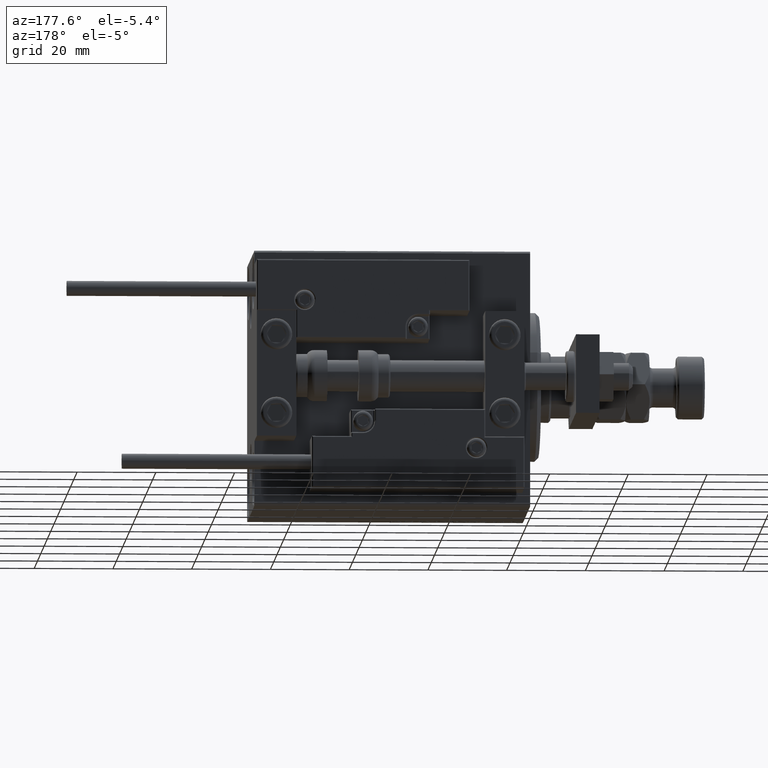
[diagram: clean part render]
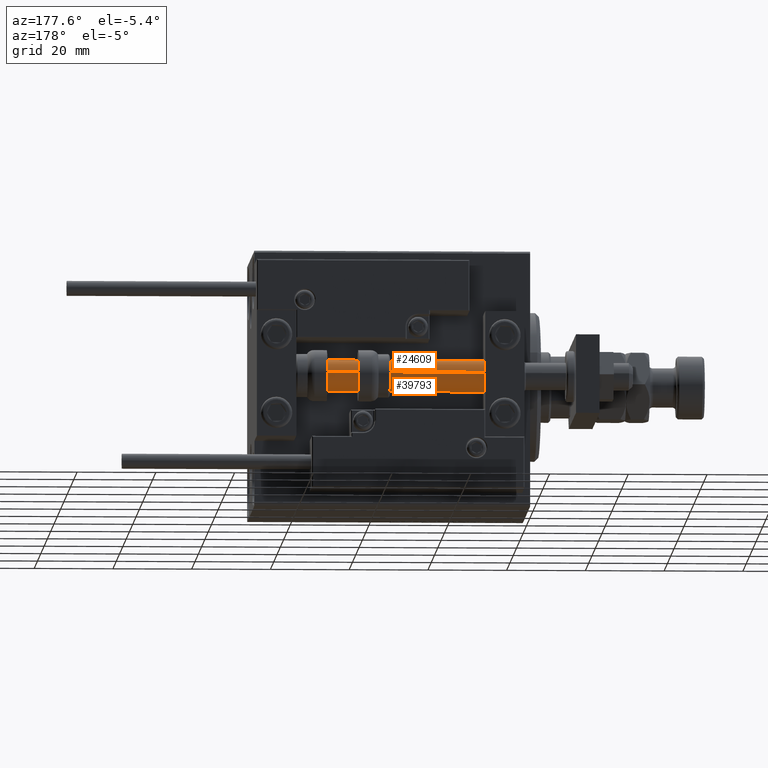
[diagram: same view with one multi-face feature highlighted, each face labeled with its STEP entity id]
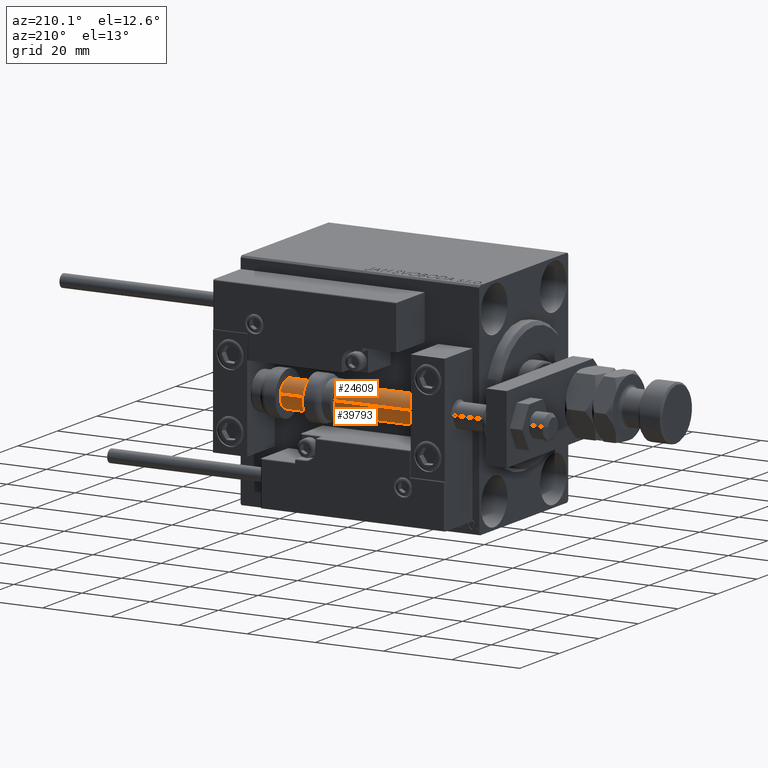
[diagram: same view with one multi-face feature highlighted, each face labeled with its STEP entity id]
A machine part, auxiliary view. The highlighted faces form ONE feature: a constant-radius fillet chain: 2 tangent blend faces with common blend radius 4 mm. The faces share edges in the B-rep.
A second angle (auxiliary view) of the same feature is appended — it is thin or edge-on in the first view.
Their STEP definitions:
[1] entity #24609 (Cylinder):
#105 = CARTESIAN_POINT ( 'NONE',  ( 4.000000000000000000, 4.898587196589412829E-16, 70.00000000000000000 ) ) ;
#454 = DIRECTION ( 'NONE',  ( 1.000000000000000000, 0.000000000000000000, 0.000000000000000000 ) ) ;
#795 = DIRECTION ( 'NONE',  ( -0.000000000000000000, -0.000000000000000000, -1.000000000000000000 ) ) ;
#4384 = DIRECTION ( 'NONE',  ( 0.000000000000000000, 0.000000000000000000, 1.000000000000000000 ) ) ;
#4900 = CARTESIAN_POINT ( 'NONE',  ( 0.000000000000000000, 0.000000000000000000, 70.00000000000000000 ) ) ;
#5377 = AXIS2_PLACEMENT_3D ( 'NONE', #14203, #10264, #41461 ) ;
#5674 = CARTESIAN_POINT ( 'NONE',  ( 0.000000000000000000, 0.000000000000000000, 70.00000000000000000 ) ) ;
#6203 = VECTOR ( 'NONE', #795, 1000.000000000000000 ) ;
#7193 = DIRECTION ( 'NONE',  ( -0.000000000000000000, -0.000000000000000000, -1.000000000000000000 ) ) ;
#9125 = AXIS2_PLACEMENT_3D ( 'NONE', #4900, #4384, #454 ) ;
#10264 = DIRECTION ( 'NONE',  ( -0.000000000000000000, -0.000000000000000000, 1.000000000000000000 ) ) ;
#11595 = EDGE_CURVE ( 'NONE', #33531, #50316, #47188, .T. ) ;
#11849 = EDGE_CURVE ( 'NONE', #33283, #33531, #17029, .T. ) ;
#13177 = CARTESIAN_POINT ( 'NONE',  ( -4.000000000000000000, 0.000000000000000000, 2.000000000000029310 ) ) ;
#14203 = CARTESIAN_POINT ( 'NONE',  ( 0.000000000000000000, 0.000000000000000000, 2.000000000000029310 ) ) ;
#14392 = VERTEX_POINT ( 'NONE', #20632 ) ;
#16669 = ORIENTED_EDGE ( 'NONE', *, *, #42827, .F. ) ;
#17029 = LINE ( 'NONE', #24113, #6203 ) ;
#17446 = AXIS2_PLACEMENT_3D ( 'NONE', #5674, #17719, #21649 ) ;
#17719 = DIRECTION ( 'NONE',  ( -0.000000000000000000, -0.000000000000000000, -1.000000000000000000 ) ) ;
#20632 = CARTESIAN_POINT ( 'NONE',  ( -4.000000000000000000, 0.000000000000000000, 70.00000000000000000 ) ) ;
#20980 = CARTESIAN_POINT ( 'NONE',  ( 4.000000000000000000, 4.898587196589412829E-16, 2.000000000000029310 ) ) ;
#21649 = DIRECTION ( 'NONE',  ( -1.000000000000000000, 0.000000000000000000, 0.000000000000000000 ) ) ;
#24113 = CARTESIAN_POINT ( 'NONE',  ( 4.000000000000000000, 4.898587196589412829E-16, 70.00000000000000000 ) ) ;
#24609 = ADVANCED_FACE ( 'NONE', ( #25590 ), #41571, .T. ) ;
#25590 = FACE_OUTER_BOUND ( 'NONE', #33533, .T. ) ;
#28949 = ORIENTED_EDGE ( 'NONE', *, *, #11849, .T. ) ;
#33283 = VERTEX_POINT ( 'NONE', #105 ) ;
#33531 = VERTEX_POINT ( 'NONE', #20980 ) ;
#33533 = EDGE_LOOP ( 'NONE', ( #50112, #28949, #43942, #16669 ) ) ;
#36645 = VECTOR ( 'NONE', #7193, 1000.000000000000000 ) ;
#41461 = DIRECTION ( 'NONE',  ( 1.000000000000000000, 0.000000000000000000, 0.000000000000000000 ) ) ;
#41571 = CYLINDRICAL_SURFACE ( 'NONE', #17446, 4.000000000000000000 ) ;
#42827 = EDGE_CURVE ( 'NONE', #14392, #50316, #47285, .T. ) ;
#43942 = ORIENTED_EDGE ( 'NONE', *, *, #11595, .T. ) ;
#45954 = EDGE_CURVE ( 'NONE', #33283, #14392, #47611, .T. ) ;
#47188 = CIRCLE ( 'NONE', #5377, 4.000000000000000000 ) ;
#47285 = LINE ( 'NONE', #48052, #36645 ) ;
#47611 = CIRCLE ( 'NONE', #9125, 4.000000000000000000 ) ;
#48052 = CARTESIAN_POINT ( 'NONE',  ( -4.000000000000000000, 0.000000000000000000, 70.00000000000000000 ) ) ;
#50112 = ORIENTED_EDGE ( 'NONE', *, *, #45954, .F. ) ;
#50316 = VERTEX_POINT ( 'NONE', #13177 ) ;
[2] entity #39793 (Cylinder):
#105 = CARTESIAN_POINT ( 'NONE',  ( 4.000000000000000000, 4.898587196589412829E-16, 70.00000000000000000 ) ) ;
#795 = DIRECTION ( 'NONE',  ( -0.000000000000000000, -0.000000000000000000, -1.000000000000000000 ) ) ;
#923 = FACE_OUTER_BOUND ( 'NONE', #17223, .T. ) ;
#1193 = CIRCLE ( 'NONE', #44688, 4.000000000000000000 ) ;
#6203 = VECTOR ( 'NONE', #795, 1000.000000000000000 ) ;
#7193 = DIRECTION ( 'NONE',  ( -0.000000000000000000, -0.000000000000000000, -1.000000000000000000 ) ) ;
#9606 = DIRECTION ( 'NONE',  ( 1.000000000000000000, 0.000000000000000000, 0.000000000000000000 ) ) ;
#11849 = EDGE_CURVE ( 'NONE', #33283, #33531, #17029, .T. ) ;
#13177 = CARTESIAN_POINT ( 'NONE',  ( -4.000000000000000000, 0.000000000000000000, 2.000000000000029310 ) ) ;
#14392 = VERTEX_POINT ( 'NONE', #20632 ) ;
#17029 = LINE ( 'NONE', #24113, #6203 ) ;
#17223 = EDGE_LOOP ( 'NONE', ( #31164, #18217, #35271, #22155 ) ) ;
#18217 = ORIENTED_EDGE ( 'NONE', *, *, #22273, .F. ) ;
#19619 = DIRECTION ( 'NONE',  ( 0.000000000000000000, 0.000000000000000000, 1.000000000000000000 ) ) ;
#19782 = DIRECTION ( 'NONE',  ( -1.000000000000000000, 0.000000000000000000, 0.000000000000000000 ) ) ;
#20310 = CARTESIAN_POINT ( 'NONE',  ( 0.000000000000000000, 0.000000000000000000, 70.00000000000000000 ) ) ;
#20632 = CARTESIAN_POINT ( 'NONE',  ( -4.000000000000000000, 0.000000000000000000, 70.00000000000000000 ) ) ;
#20980 = CARTESIAN_POINT ( 'NONE',  ( 4.000000000000000000, 4.898587196589412829E-16, 2.000000000000029310 ) ) ;
#22155 = ORIENTED_EDGE ( 'NONE', *, *, #30941, .T. ) ;
#22273 = EDGE_CURVE ( 'NONE', #14392, #33283, #26554, .T. ) ;
#24113 = CARTESIAN_POINT ( 'NONE',  ( 4.000000000000000000, 4.898587196589412829E-16, 70.00000000000000000 ) ) ;
#24502 = CYLINDRICAL_SURFACE ( 'NONE', #39998, 4.000000000000000000 ) ;
#26554 = CIRCLE ( 'NONE', #37440, 4.000000000000000000 ) ;
#30941 = EDGE_CURVE ( 'NONE', #50316, #33531, #1193, .T. ) ;
#31164 = ORIENTED_EDGE ( 'NONE', *, *, #11849, .F. ) ;
#33283 = VERTEX_POINT ( 'NONE', #105 ) ;
#33531 = VERTEX_POINT ( 'NONE', #20980 ) ;
#35271 = ORIENTED_EDGE ( 'NONE', *, *, #42827, .T. ) ;
#35624 = DIRECTION ( 'NONE',  ( 1.000000000000000000, 0.000000000000000000, 0.000000000000000000 ) ) ;
#36645 = VECTOR ( 'NONE', #7193, 1000.000000000000000 ) ;
#37440 = AXIS2_PLACEMENT_3D ( 'NONE', #46645, #19619, #35624 ) ;
#38170 = DIRECTION ( 'NONE',  ( -0.000000000000000000, -0.000000000000000000, 1.000000000000000000 ) ) ;
#39793 = ADVANCED_FACE ( 'NONE', ( #923 ), #24502, .T. ) ;
#39998 = AXIS2_PLACEMENT_3D ( 'NONE', #20310, #48601, #19782 ) ;
#42827 = EDGE_CURVE ( 'NONE', #14392, #50316, #47285, .T. ) ;
#44688 = AXIS2_PLACEMENT_3D ( 'NONE', #49424, #38170, #9606 ) ;
#46645 = CARTESIAN_POINT ( 'NONE',  ( 0.000000000000000000, 0.000000000000000000, 70.00000000000000000 ) ) ;
#47285 = LINE ( 'NONE', #48052, #36645 ) ;
#48052 = CARTESIAN_POINT ( 'NONE',  ( -4.000000000000000000, 0.000000000000000000, 70.00000000000000000 ) ) ;
#48601 = DIRECTION ( 'NONE',  ( -0.000000000000000000, -0.000000000000000000, -1.000000000000000000 ) ) ;
#49424 = CARTESIAN_POINT ( 'NONE',  ( 0.000000000000000000, 0.000000000000000000, 2.000000000000029310 ) ) ;
#50316 = VERTEX_POINT ( 'NONE', #13177 ) ;